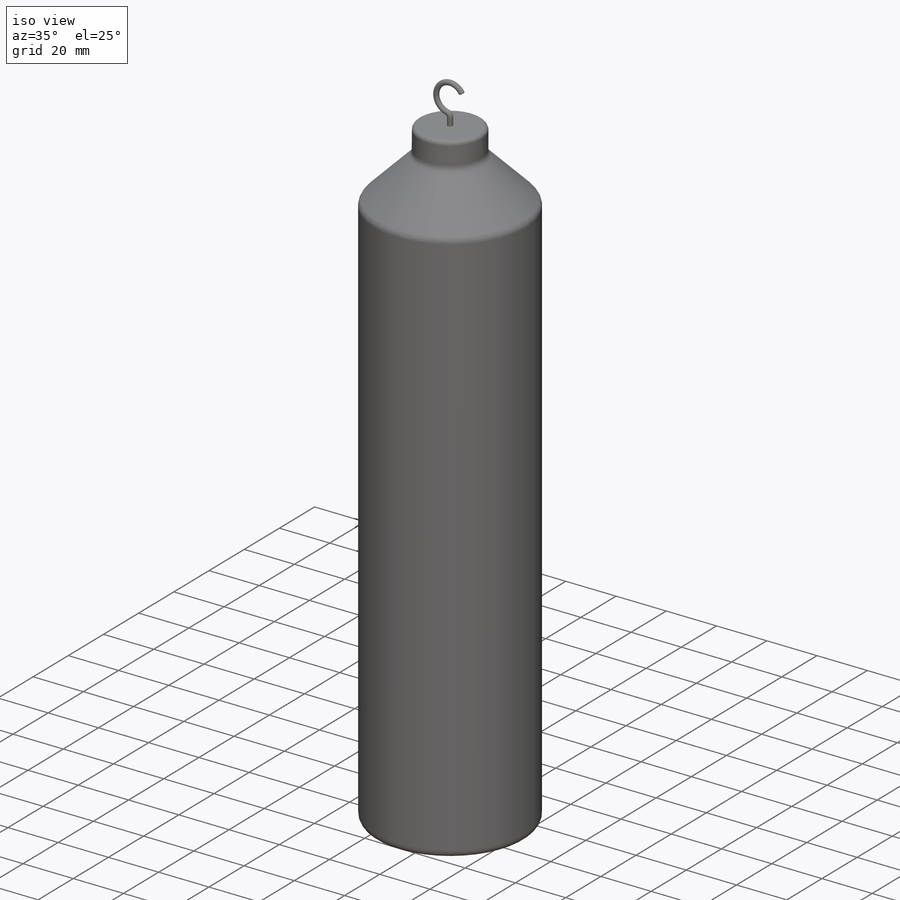
[diagram: iso view]
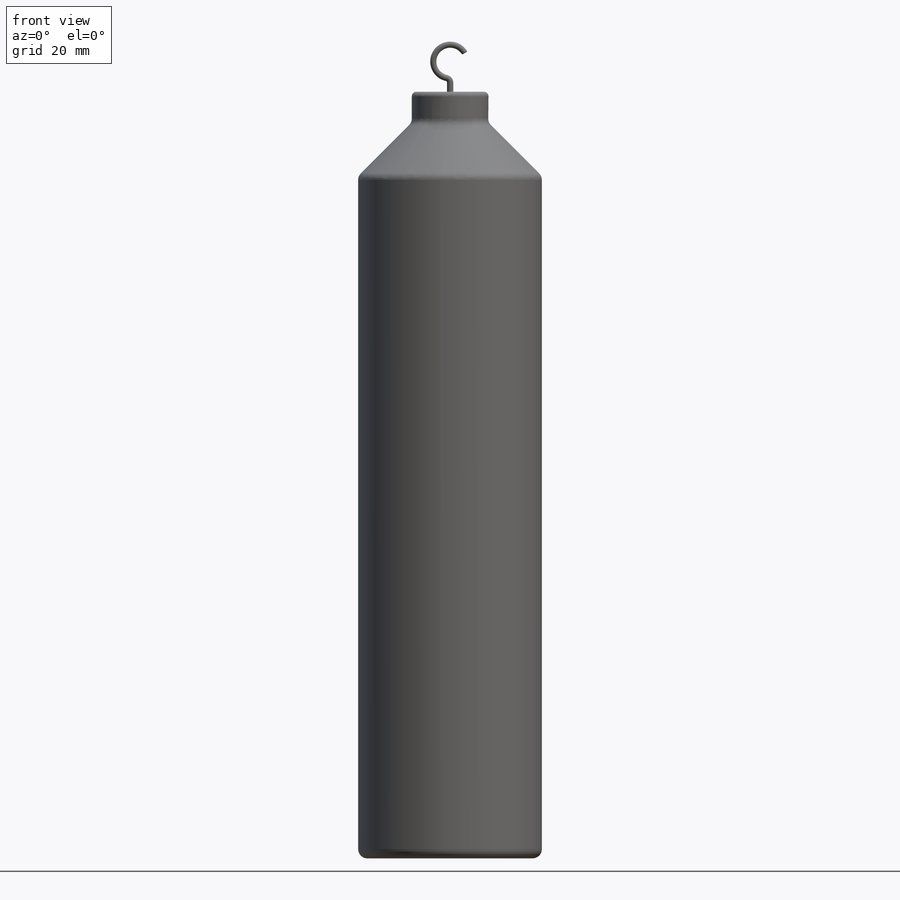
[diagram: front view]
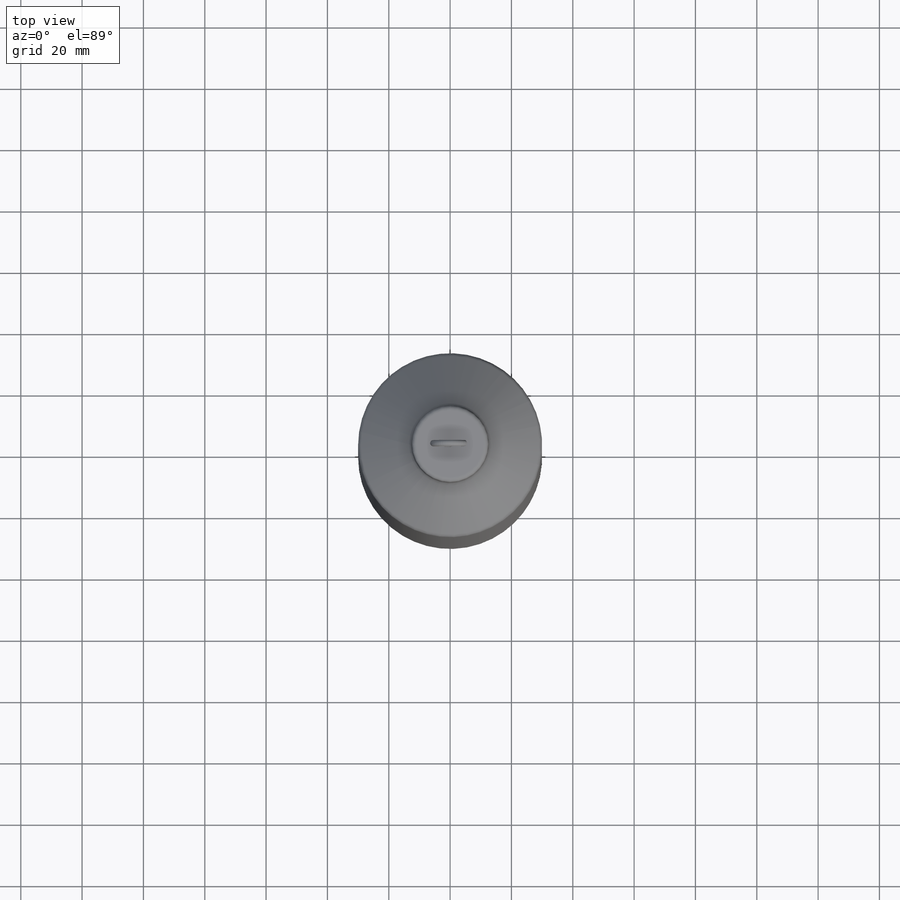
[diagram: top view]
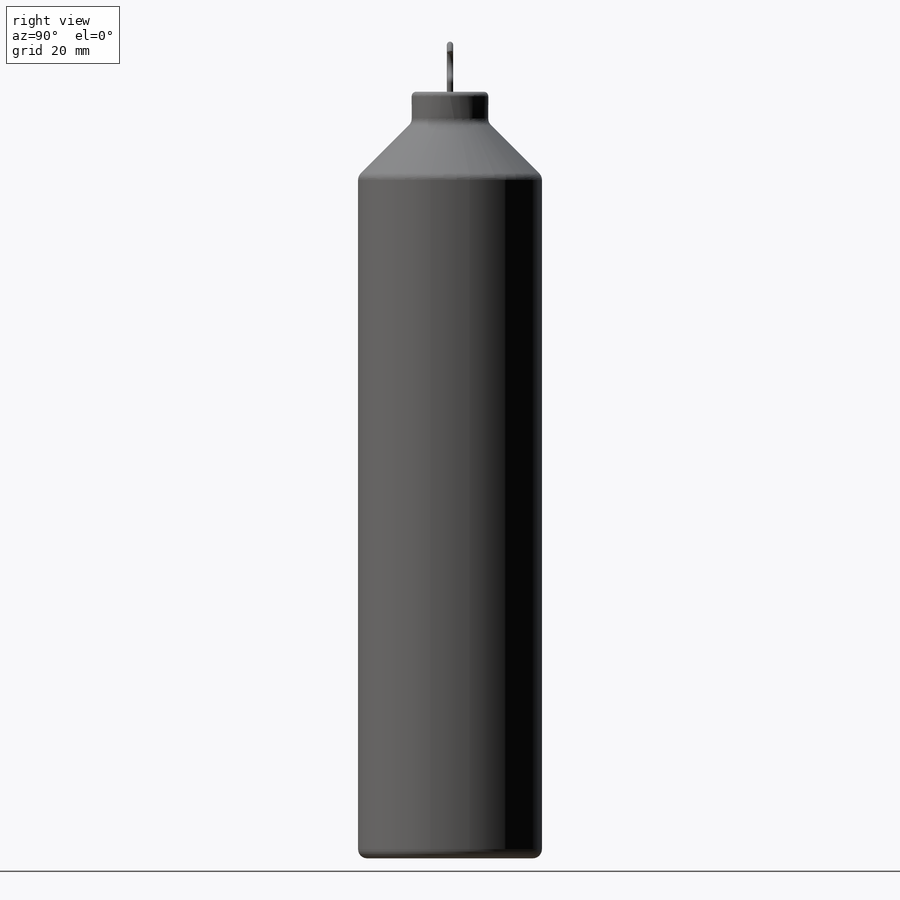
[diagram: right view]
SOLIDWORKS PART (.sldprt)
format: sldprt  version: not decoded by parser v0  size: 220,160 bytes
history: native  units: mm
features: plane x4, sketch x3, material x1, revolve x1, sweep x1, chamfer x1 (+13 scaffold rows collapsed)
feature tree (24):
  scaffold x13  (default folders/planes/origin — collapsed)
  material  "Латунь"
  plane  "Спереди"
  plane  "Сверху"
  plane  "Справа"
  sketch  "Эскиз1"  dims[c1.D9=1.5mm c1.D10=3.0mm c1.D1=250.0mm c1.D2=30.0mm c1.D3=12.5mm c1.D4=17.5mm c2.D4=45.0deg c2.D5=10.0mm c2.D1=250.0mm c2.D6=1.0mm c2.D7=~2.626914mm c3.D7=31.0deg c3.D8=30.0mm]
  revolve  "Повернуть1"  Angle=360deg
  sketch  "Эскиз2"  dims[c1.D1=11.0mm c1.D3=1.5mm c1.D2=~38.749041mm c2.D2=60.0deg c2.D4=33.0mm]
  plane  "Плоскость1"
  sketch  "Эскиз3"  dims[D1=2.0mm]
  sweep  "По траектории1"
  chamfer  "Фаска1"  Distance=0.25mm Angle=45deg
decode coverage: 5 of 6 modeling features carry decoded parameters
note: ~ marks probable driven/reference dimensions
note: suppression state not decoded; provenance and decode notes live in map.json
